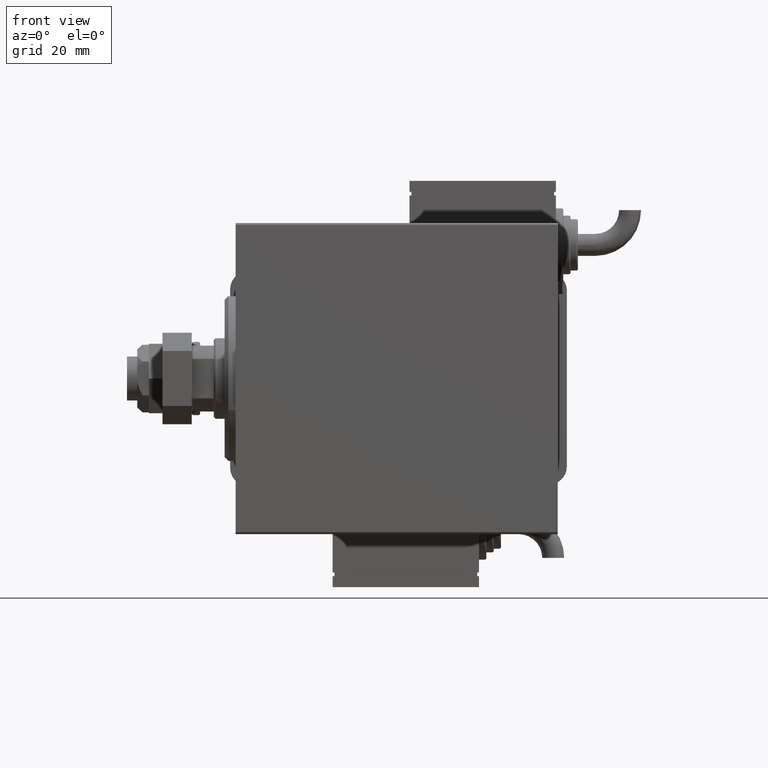
[diagram: clean part render]
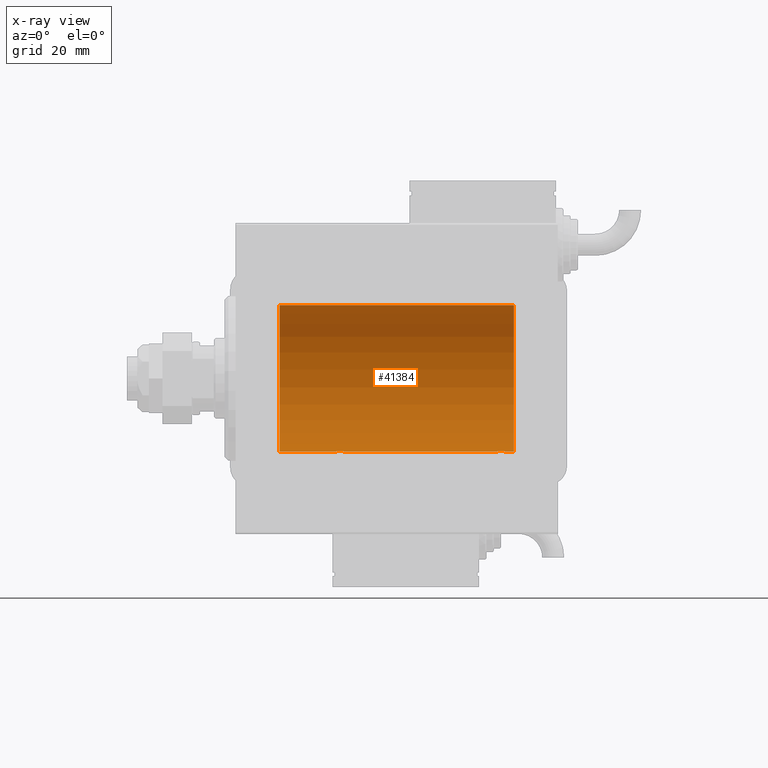
[diagram: x-ray — body ghosted, one internal face saturated and labeled with its STEP entity id]
A machine part, front view, then the same camera in x-ray: the body is ghosted and one INTERNAL B-rep face — a face not visible from any outside direction — is saturated and labeled: STEP entity #41384.
In plain terms, the highlighted cylindrical surface (partial cylindrical patch) has radius 20 mm, axis along (-1, -0, -0).
Its self-contained STEP definition (entity closure, byte-faithful):
#217 = CARTESIAN_POINT ( 'NONE',  ( 73.50297226784952898, 1.735228749583831442, -19.92471474456648650 ) ) ;
#507 = CARTESIAN_POINT ( 'NONE',  ( 71.97486091545005138, 1.947330458682943188, -19.90522393307485771 ) ) ;
#823 = AXIS2_PLACEMENT_3D ( 'NONE', #10514, #11117, #15663 ) ;
#1842 = DIRECTION ( 'NONE',  ( 0.000000000000000000, 0.000000000000000000, 1.000000000000000000 ) ) ;
#2432 = EDGE_CURVE ( 'NONE', #7548, #25552, #11448, .T. ) ;
#2900 = CARTESIAN_POINT ( 'NONE',  ( 26.51298505384673732, 0.2622407139811037680, -19.99868965376114716 ) ) ;
#3798 = CARTESIAN_POINT ( 'NONE',  ( 76.00000000000000000, 2.449293598294706513E-15, -20.00000000000000000 ) ) ;
#3846 = CARTESIAN_POINT ( 'NONE',  ( 70.50000000000000000, -5.133775462521235346E-15, -20.00000000000000000 ) ) ;
#4151 = CARTESIAN_POINT ( 'NONE',  ( 73.82060165083835557, 1.507796451871721066, -19.94330239452388298 ) ) ;
#6119 = B_SPLINE_CURVE_WITH_KNOTS ( 'NONE', 3,
 ( #3846, #32268, #18963, #28028, #31972, #36193, #36490, #36794, #28324, #22601, #45572, #507, #41323, #54619, #51267, #59762, #8697, #18387, #217, #27733, #4151, #41627, #41917, #32857, #18086, #45866, #9286, #59456, #13237, #54915 ),
 .UNSPECIFIED., .F., .F.,
 ( 4, 2, 2, 2, 2, 2, 2, 2, 2, 2, 2, 2, 2, 2, 4 ),
 ( 2.321975990544223827E-18, 0.0003910512220831165522, 0.0007821024441662306108, 0.001173153666249344886, 0.001564204888332458836, 0.002346307332498715360, 0.003128409776664972317, 0.003519460998748080629, 0.003910512220831188074, 0.004301563442914295952, 0.004692614664997402096, 0.005083665887080509975, 0.005474717109163616986, 0.005865768331246724865, 0.006256819553329831876 ),
 .UNSPECIFIED. ) ;
#6180 = VECTOR ( 'NONE', #14736, 1000.000000000000000 ) ;
#6187 = LINE ( 'NONE', #24645, #53102 ) ;
#6504 = EDGE_LOOP ( 'NONE', ( #20409, #39587, #25639, #59396, #49164, #34183, #21781, #28166 ) ) ;
#6535 = CARTESIAN_POINT ( 'NONE',  ( 26.50000000000000355, -6.257798774011376898E-15, -20.00000000000000000 ) ) ;
#6843 = CARTESIAN_POINT ( 'NONE',  ( 30.48691292011447374, 0.2631998640366455255, -19.99867931558985745 ) ) ;
#7138 = CARTESIAN_POINT ( 'NONE',  ( 28.23819846102561826, 1.999905101582720279, -19.89975827978156886 ) ) ;
#7434 = CARTESIAN_POINT ( 'NONE',  ( 29.14371130639851160, 1.898109641280501636, -19.90978941500366872 ) ) ;
#7548 = VERTEX_POINT ( 'NONE', #13260 ) ;
#8047 = LINE ( 'NONE', #3798, #17329 ) ;
#8697 = CARTESIAN_POINT ( 'NONE',  ( 73.14371130639852936, 1.898109641280498527, -19.90978941500366517 ) ) ;
#9286 = CARTESIAN_POINT ( 'NONE',  ( 74.43573148867291422, 0.5196544277756690589, -19.99365919015135518 ) ) ;
#9356 = VERTEX_POINT ( 'NONE', #18932 ) ;
#9895 = LINE ( 'NONE', #32573, #39771 ) ;
#10248 = EDGE_CURVE ( 'NONE', #9356, #38535, #6187, .T. ) ;
#10514 = CARTESIAN_POINT ( 'NONE',  ( 11.99999999999999645, 0.000000000000000000, 0.000000000000000000 ) ) ;
#11081 = CARTESIAN_POINT ( 'NONE',  ( 30.09007067689674741, 1.220099331833897294, -19.96304379627741099 ) ) ;
#11117 = DIRECTION ( 'NONE',  ( -1.000000000000000000, 0.000000000000000000, 0.000000000000000000 ) ) ;
#11448 = CIRCLE ( 'NONE', #54877, 20.00000000000000000 ) ;
#11682 = CARTESIAN_POINT ( 'NONE',  ( 26.70278656943304796, 0.8872481584516701547, -19.98067755938510004 ) ) ;
#13237 = CARTESIAN_POINT ( 'NONE',  ( 74.50000000000000000, 0.1305706983324447512, -20.00000000000000000 ) ) ;
#13260 = CARTESIAN_POINT ( 'NONE',  ( 76.00000000000000000, 0.000000000000000000, 20.00000000000000000 ) ) ;
#14736 = DIRECTION ( 'NONE',  ( -1.000000000000000000, -0.000000000000000000, -0.000000000000000000 ) ) ;
#15663 = DIRECTION ( 'NONE',  ( 0.000000000000000000, 0.000000000000000000, 1.000000000000000000 ) ) ;
#15948 = EDGE_CURVE ( 'NONE', #7548, #43743, #9895, .T. ) ;
#16147 = VERTEX_POINT ( 'NONE', #17124 ) ;
#17124 = CARTESIAN_POINT ( 'NONE',  ( 74.50000000000001421, 2.449293582762867932E-15, -20.00000000000000000 ) ) ;
#17329 = VECTOR ( 'NONE', #31320, 1000.000000000000000 ) ;
#18086 = CARTESIAN_POINT ( 'NONE',  ( 74.29753901127162408, 0.8865903856744312694, -19.98070694681039328 ) ) ;
#18387 = CARTESIAN_POINT ( 'NONE',  ( 73.38596189455839180, 1.797847595792761100, -19.91909332229798579 ) ) ;
#18932 = CARTESIAN_POINT ( 'NONE',  ( 70.50000000000000000, -5.133775462521235346E-15, -20.00000000000000000 ) ) ;
#18963 = CARTESIAN_POINT ( 'NONE',  ( 70.51298505384674797, 0.2622407139811032684, -19.99868965376115071 ) ) ;
#19283 = CARTESIAN_POINT ( 'NONE',  ( 76.00000000000000000, 2.449293598294706513E-15, -20.00000000000000000 ) ) ;
#20168 = CARTESIAN_POINT ( 'NONE',  ( 27.97486091545001230, 1.947330458682949850, -19.90522393307485061 ) ) ;
#20409 = ORIENTED_EDGE ( 'NONE', *, *, #30903, .F. ) ;
#20478 = CARTESIAN_POINT ( 'NONE',  ( 27.27049887769365810, 1.598854313793178994, -19.93684595445884256 ) ) ;
#21059 = CARTESIAN_POINT ( 'NONE',  ( 26.56384771616671969, 0.5179893069484556856, -19.99370013622814568 ) ) ;
#21781 = ORIENTED_EDGE ( 'NONE', *, *, #10248, .F. ) ;
#22601 = CARTESIAN_POINT ( 'NONE',  ( 71.27049887769368297, 1.598854313793175885, -19.93684595445884966 ) ) ;
#22710 = CARTESIAN_POINT ( 'NONE',  ( 11.99999999999999645, 0.000000000000000000, 20.00000000000000000 ) ) ;
#22893 = AXIS2_PLACEMENT_3D ( 'NONE', #49195, #43256, #1842 ) ;
#24645 = CARTESIAN_POINT ( 'NONE',  ( 76.00000000000000000, 2.449293598294706513E-15, -20.00000000000000000 ) ) ;
#24694 = CARTESIAN_POINT ( 'NONE',  ( 29.01899474186110695, 1.935912154109695082, -19.90610216711450420 ) ) ;
#25003 = CARTESIAN_POINT ( 'NONE',  ( 30.23489454601983795, 1.003547732426805617, -19.97510079925437054 ) ) ;
#25300 = CARTESIAN_POINT ( 'NONE',  ( 30.50000000000000000, 0.1305706983324451675, -19.99999999999999289 ) ) ;
#25552 = VERTEX_POINT ( 'NONE', #47398 ) ;
#25599 = CARTESIAN_POINT ( 'NONE',  ( 29.71960275349742986, 1.590453176650915346, -19.93679350243183634 ) ) ;
#25639 = ORIENTED_EDGE ( 'NONE', *, *, #15948, .T. ) ;
#25893 = CARTESIAN_POINT ( 'NONE',  ( 30.39789687358864967, 0.6443418861413116039, -19.98998539619404724 ) ) ;
#26546 = CYLINDRICAL_SURFACE ( 'NONE', #22893, 20.00000000000000000 ) ;
#26905 = CIRCLE ( 'NONE', #823, 20.00000000000000000 ) ;
#27733 = CARTESIAN_POINT ( 'NONE',  ( 73.71960275349746894, 1.590453176650917566, -19.93679350243184345 ) ) ;
#28028 = CARTESIAN_POINT ( 'NONE',  ( 70.56384771616671969, 0.5179893069484544643, -19.99370013622813858 ) ) ;
#28166 = ORIENTED_EDGE ( 'NONE', *, *, #41456, .T. ) ;
#28324 = CARTESIAN_POINT ( 'NONE',  ( 70.99384229619288078, 1.322305185229300184, -19.95645382900616482 ) ) ;
#30127 = CARTESIAN_POINT ( 'NONE',  ( 26.90940266542447645, 1.219458756546263789, -19.96308513509966787 ) ) ;
#30903 = EDGE_CURVE ( 'NONE', #25552, #16147, #47058, .T. ) ;
#31320 = DIRECTION ( 'NONE',  ( -1.000000000000000000, -0.000000000000000000, -0.000000000000000000 ) ) ;
#31972 = CARTESIAN_POINT ( 'NONE',  ( 70.60234886833930545, 0.6450624715427508704, -19.98996196681220994 ) ) ;
#32048 = VERTEX_POINT ( 'NONE', #32717 ) ;
#32268 = CARTESIAN_POINT ( 'NONE',  ( 70.50000000000000000, 0.1322335637814657239, -20.00000000000000355 ) ) ;
#32284 = DIRECTION ( 'NONE',  ( -1.000000000000000000, -0.000000000000000000, -0.000000000000000000 ) ) ;
#32573 = CARTESIAN_POINT ( 'NONE',  ( 76.00000000000000000, 0.000000000000000000, 20.00000000000000000 ) ) ;
#32717 = CARTESIAN_POINT ( 'NONE',  ( 26.50000000000000355, -6.257798774011376898E-15, -20.00000000000000000 ) ) ;
#32857 = CARTESIAN_POINT ( 'NONE',  ( 74.23489454601981663, 1.003547732426802730, -19.97510079925436699 ) ) ;
#34183 = ORIENTED_EDGE ( 'NONE', *, *, #35663, .T. ) ;
#34347 = CARTESIAN_POINT ( 'NONE',  ( 28.62981181290706090, 2.000047251570884477, -19.89974399317115683 ) ) ;
#35299 = FACE_OUTER_BOUND ( 'NONE', #6504, .T. ) ;
#35663 = EDGE_CURVE ( 'NONE', #32048, #38535, #44163, .T. ) ;
#36193 = CARTESIAN_POINT ( 'NONE',  ( 70.70278656943303019, 0.8872481584516642705, -19.98067755938510359 ) ) ;
#36490 = CARTESIAN_POINT ( 'NONE',  ( 70.76423634872104174, 1.002099838626304695, -19.97517568592526871 ) ) ;
#36794 = CARTESIAN_POINT ( 'NONE',  ( 70.90940266542450843, 1.219458756546260236, -19.96308513509967497 ) ) ;
#38535 = VERTEX_POINT ( 'NONE', #53931 ) ;
#38572 = CARTESIAN_POINT ( 'NONE',  ( 29.38596189455837049, 1.797847595792762432, -19.91909332229799290 ) ) ;
#38877 = CARTESIAN_POINT ( 'NONE',  ( 26.76423634872104884, 1.002099838626308248, -19.97517568592526160 ) ) ;
#39587 = ORIENTED_EDGE ( 'NONE', *, *, #2432, .F. ) ;
#39771 = VECTOR ( 'NONE', #32284, 1000.000000000000000 ) ;
#41323 = CARTESIAN_POINT ( 'NONE',  ( 72.23819846102561826, 1.999905101582715394, -19.89975827978156531 ) ) ;
#41384 = ADVANCED_FACE ( 'NONE', ( #35299 ), #26546, .F. ) ;
#41456 = EDGE_CURVE ( 'NONE', #9356, #16147, #6119, .T. ) ;
#41627 = CARTESIAN_POINT ( 'NONE',  ( 74.00738641543991037, 1.321069663197662614, -19.95654117037011233 ) ) ;
#41917 = CARTESIAN_POINT ( 'NONE',  ( 74.09007067689672965, 1.220099331833893741, -19.96304379627740744 ) ) ;
#42615 = DIRECTION ( 'NONE',  ( -1.000000000000000000, 0.000000000000000000, 0.000000000000000000 ) ) ;
#43062 = DIRECTION ( 'NONE',  ( -1.000000000000000000, -0.000000000000000000, -0.000000000000000000 ) ) ;
#43256 = DIRECTION ( 'NONE',  ( -1.000000000000000000, -0.000000000000000000, -0.000000000000000000 ) ) ;
#43743 = VERTEX_POINT ( 'NONE', #22710 ) ;
#44012 = CARTESIAN_POINT ( 'NONE',  ( 30.29753901127163118, 0.8865903856744307143, -19.98070694681039683 ) ) ;
#44163 = B_SPLINE_CURVE_WITH_KNOTS ( 'NONE', 3,
 ( #6535, #53071, #2900, #21059, #57012, #11682, #38877, #30127, #47640, #20478, #48536, #20168, #7138, #34347, #58202, #24694, #7434, #38572, #53365, #25599, #48245, #52470, #11081, #25003, #44012, #25893, #44312, #6843, #25300, #57311 ),
 .UNSPECIFIED., .F., .F.,
 ( 4, 2, 2, 2, 2, 2, 2, 2, 2, 2, 2, 2, 2, 2, 4 ),
 ( 5.963022395843225278E-20, 0.0003910512220831150344, 0.0007821024441662300687, 0.001173153666249344886, 0.001564204888332459921, 0.002346307332498689339, 0.003128409776664918974, 0.003519460998748033791, 0.003910512220831149043, 0.004301563442914263860, 0.004692614664997378678, 0.005083665887080494362, 0.005474717109163609180, 0.005865768331246723997, 0.006256819553329837948 ),
 .UNSPECIFIED. ) ;
#44231 = VERTEX_POINT ( 'NONE', #45234 ) ;
#44312 = CARTESIAN_POINT ( 'NONE',  ( 30.43573148867292488, 0.5196544277756701691, -19.99365919015135518 ) ) ;
#44995 = EDGE_CURVE ( 'NONE', #43743, #44231, #26905, .T. ) ;
#45234 = CARTESIAN_POINT ( 'NONE',  ( 11.99999999999999645, 2.449293598294706513E-15, -20.00000000000000000 ) ) ;
#45572 = CARTESIAN_POINT ( 'NONE',  ( 71.49354240926170689, 1.747830109444730384, -19.92373272380676497 ) ) ;
#45866 = CARTESIAN_POINT ( 'NONE',  ( 74.39789687358864967, 0.6443418861413126031, -19.98998539619404724 ) ) ;
#47058 = LINE ( 'NONE', #19283, #6180 ) ;
#47314 = EDGE_CURVE ( 'NONE', #32048, #44231, #8047, .T. ) ;
#47398 = CARTESIAN_POINT ( 'NONE',  ( 76.00000000000000000, 2.449293598294706513E-15, -20.00000000000000000 ) ) ;
#47441 = CARTESIAN_POINT ( 'NONE',  ( 76.00000000000000000, 0.000000000000000000, 0.000000000000000000 ) ) ;
#47640 = CARTESIAN_POINT ( 'NONE',  ( 26.99384229619287012, 1.322305185229304625, -19.95645382900617548 ) ) ;
#48245 = CARTESIAN_POINT ( 'NONE',  ( 29.82060165083834846, 1.507796451871724175, -19.94330239452387943 ) ) ;
#48536 = CARTESIAN_POINT ( 'NONE',  ( 27.49354240926169268, 1.747830109444738156, -19.92373272380676852 ) ) ;
#49164 = ORIENTED_EDGE ( 'NONE', *, *, #47314, .F. ) ;
#49195 = CARTESIAN_POINT ( 'NONE',  ( 76.00000000000000000, 0.000000000000000000, 0.000000000000000000 ) ) ;
#51267 = CARTESIAN_POINT ( 'NONE',  ( 72.76241417820001800, 1.987020435121066742, -19.90106552791689154 ) ) ;
#51662 = DIRECTION ( 'NONE',  ( 0.000000000000000000, 0.000000000000000000, 1.000000000000000000 ) ) ;
#52470 = CARTESIAN_POINT ( 'NONE',  ( 30.00738641543989260, 1.321069663197666388, -19.95654117037011588 ) ) ;
#53071 = CARTESIAN_POINT ( 'NONE',  ( 26.50000000000001066, 0.1322335637814670561, -19.99999999999999645 ) ) ;
#53102 = VECTOR ( 'NONE', #43062, 1000.000000000000000 ) ;
#53365 = CARTESIAN_POINT ( 'NONE',  ( 29.50297226784953608, 1.735228749583830332, -19.92471474456648650 ) ) ;
#53931 = CARTESIAN_POINT ( 'NONE',  ( 30.50000000000000000, 2.449293582768389958E-15, -20.00000000000000000 ) ) ;
#54619 = CARTESIAN_POINT ( 'NONE',  ( 72.62981181290707866, 2.000047251570880036, -19.89974399317116038 ) ) ;
#54877 = AXIS2_PLACEMENT_3D ( 'NONE', #47441, #42615, #51662 ) ;
#54915 = CARTESIAN_POINT ( 'NONE',  ( 74.50000000000001421, 2.449293582762867932E-15, -20.00000000000000000 ) ) ;
#57012 = CARTESIAN_POINT ( 'NONE',  ( 26.60234886833925927, 0.6450624715427553113, -19.98996196681220638 ) ) ;
#57311 = CARTESIAN_POINT ( 'NONE',  ( 30.50000000000000000, 2.449293582768389958E-15, -20.00000000000000000 ) ) ;
#58202 = CARTESIAN_POINT ( 'NONE',  ( 28.76241417820002155, 1.987020435121070516, -19.90106552791689154 ) ) ;
#59396 = ORIENTED_EDGE ( 'NONE', *, *, #44995, .T. ) ;
#59456 = CARTESIAN_POINT ( 'NONE',  ( 74.48691292011450571, 0.2631998640366452480, -19.99867931558986101 ) ) ;
#59762 = CARTESIAN_POINT ( 'NONE',  ( 73.01899474186113537, 1.935912154109691752, -19.90610216711450775 ) ) ;